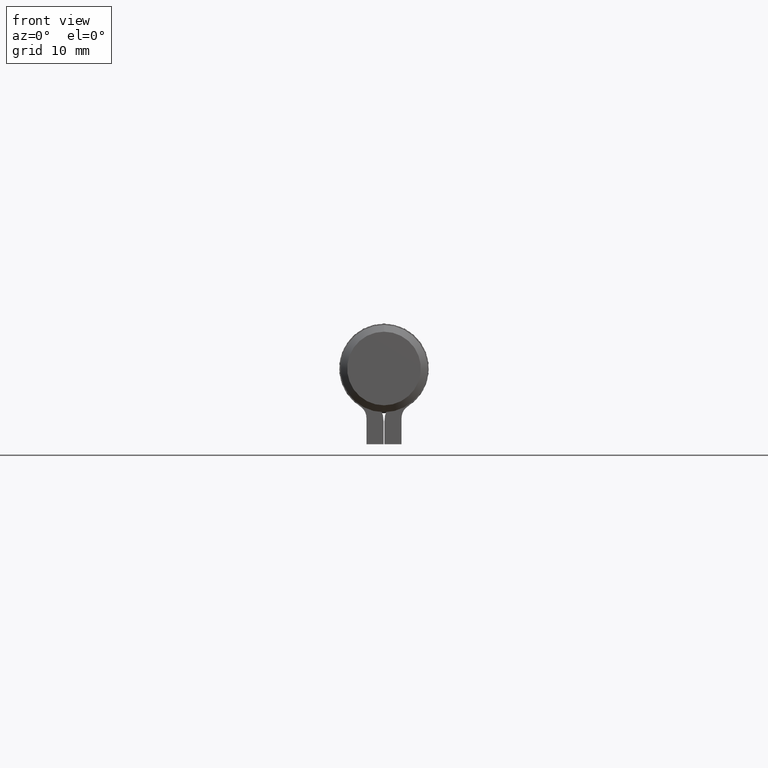
[diagram: clean part render]
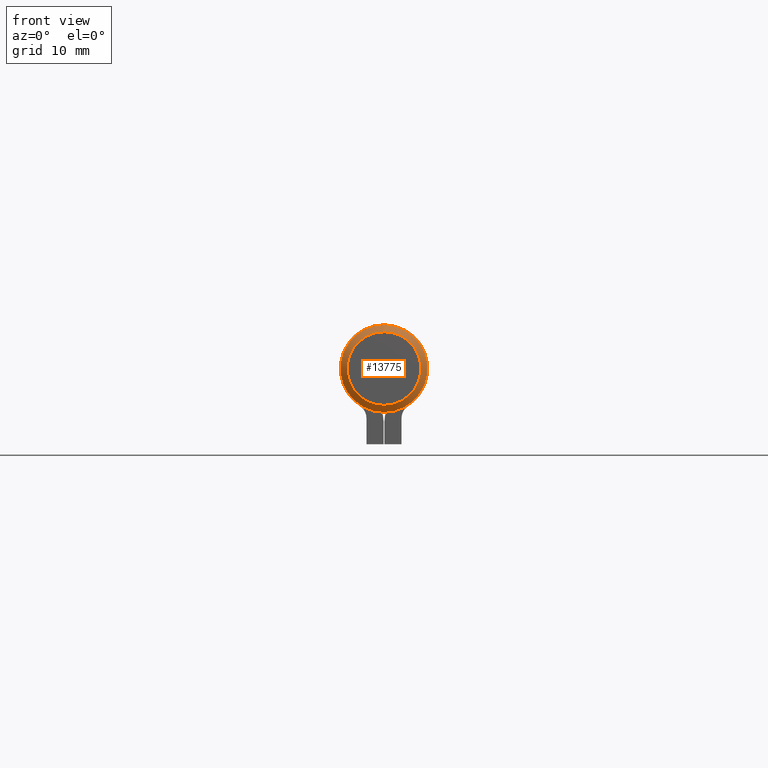
[diagram: same view with one face highlighted and labeled with its STEP entity id]
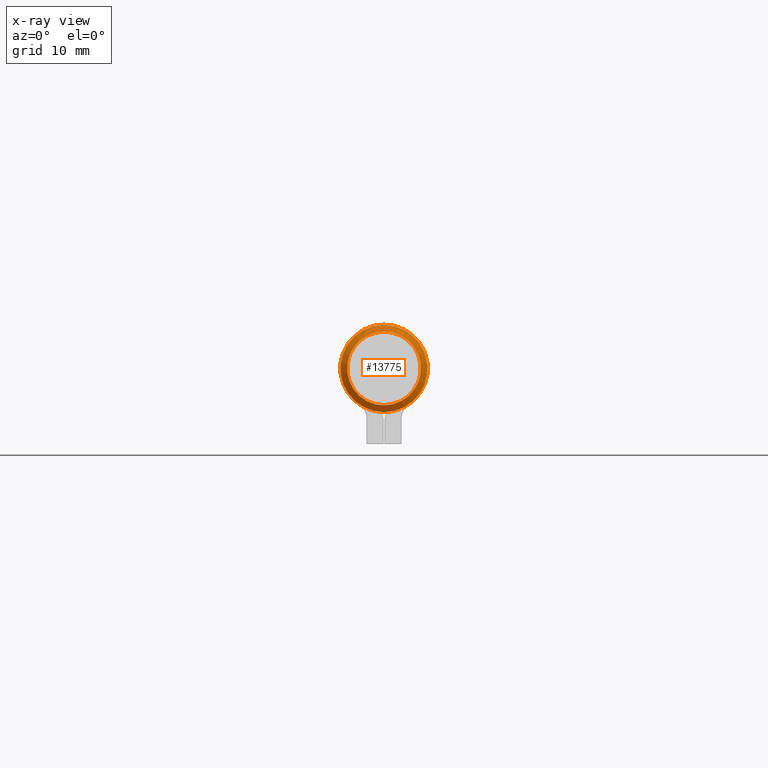
[diagram: x-ray of the same camera — body ghosted, the highlighted face saturated]
A machine part, front view. The second image highlights one B-rep face of the part: STEP entity #13775.
The next image is the same camera in x-ray: the body ghosted, the highlighted face saturated — about 0% of this face is hidden behind the body in this view.
In plain terms, the highlighted conical surface has half-angle 45 deg.
Its self-contained STEP definition (entity closure, byte-faithful):
#4 = AXIS2_PLACEMENT_3D ( 'NONE', #7331, #13920, #12810 ) ;
#909 = CIRCLE ( 'NONE', #5926, 6.349999999999999645 ) ;
#985 = CARTESIAN_POINT ( 'NONE',  ( 1.387778780781445676E-14, -50.99999999999998579, 0.000000000000000000 ) ) ;
#1840 = CARTESIAN_POINT ( 'NONE',  ( 1.387778780781445676E-14, -50.99999999999998579, 6.349999999999999645 ) ) ;
#5175 = AXIS2_PLACEMENT_3D ( 'NONE', #7752, #5424, #6525 ) ;
#5424 = DIRECTION ( 'NONE',  ( 0.000000000000000000, -1.000000000000000000, 0.000000000000000000 ) ) ;
#5629 = CONICAL_SURFACE ( 'NONE', #4, 6.349999999999999645, 0.7853981633974513876 ) ;
#5926 = AXIS2_PLACEMENT_3D ( 'NONE', #985, #6350, #7411 ) ;
#6350 = DIRECTION ( 'NONE',  ( -0.000000000000000000, 1.000000000000000000, -0.000000000000000000 ) ) ;
#6525 = DIRECTION ( 'NONE',  ( 0.000000000000000000, 0.000000000000000000, 1.000000000000000000 ) ) ;
#7174 = ORIENTED_EDGE ( 'NONE', *, *, #7814, .F. ) ;
#7331 = CARTESIAN_POINT ( 'NONE',  ( 1.387778780781445676E-14, -50.99999999999998579, 0.000000000000000000 ) ) ;
#7360 = CIRCLE ( 'NONE', #5175, 5.349999999999979217 ) ;
#7411 = DIRECTION ( 'NONE',  ( 0.000000000000000000, 0.000000000000000000, 1.000000000000000000 ) ) ;
#7752 = CARTESIAN_POINT ( 'NONE',  ( 1.387778780781445676E-14, -52.00000000000000000, 0.000000000000000000 ) ) ;
#7814 = EDGE_CURVE ( 'NONE', #11511, #11511, #909, .T. ) ;
#8173 = EDGE_LOOP ( 'NONE', ( #13358 ) ) ;
#9268 = EDGE_LOOP ( 'NONE', ( #7174 ) ) ;
#9992 = FACE_BOUND ( 'NONE', #8173, .T. ) ;
#11511 = VERTEX_POINT ( 'NONE', #1840 ) ;
#12182 = VERTEX_POINT ( 'NONE', #12890 ) ;
#12677 = FACE_OUTER_BOUND ( 'NONE', #9268, .T. ) ;
#12810 = DIRECTION ( 'NONE',  ( 0.000000000000000000, 0.000000000000000000, 1.000000000000000000 ) ) ;
#12890 = CARTESIAN_POINT ( 'NONE',  ( 1.387778780781445676E-14, -52.00000000000000000, 5.349999999999979217 ) ) ;
#13358 = ORIENTED_EDGE ( 'NONE', *, *, #13447, .F. ) ;
#13447 = EDGE_CURVE ( 'NONE', #12182, #12182, #7360, .T. ) ;
#13775 = ADVANCED_FACE ( 'NONE', ( #9992, #12677 ), #5629, .T. ) ;
#13920 = DIRECTION ( 'NONE',  ( -0.000000000000000000, 1.000000000000000000, -0.000000000000000000 ) ) ;